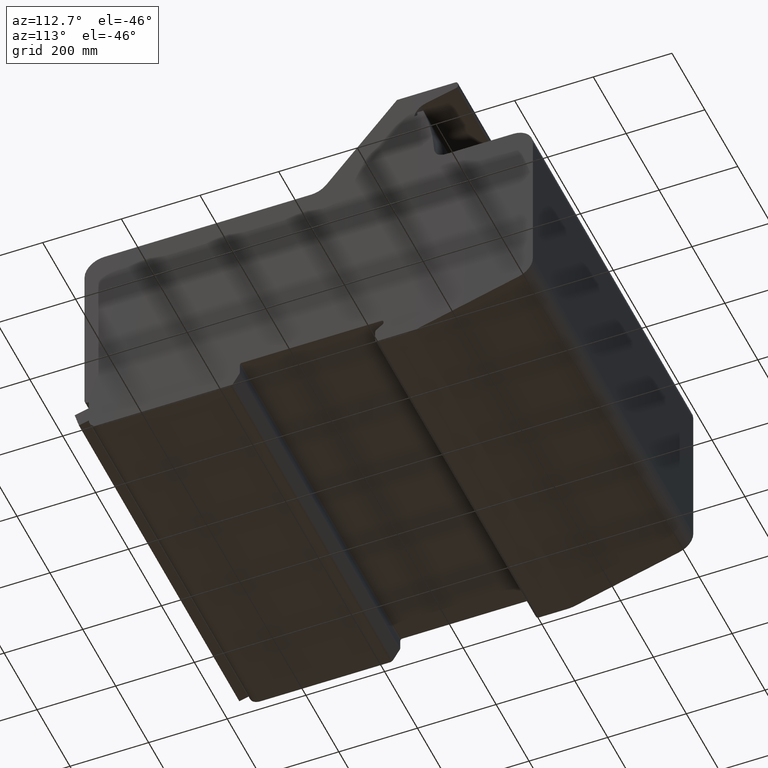
[diagram: clean part render]
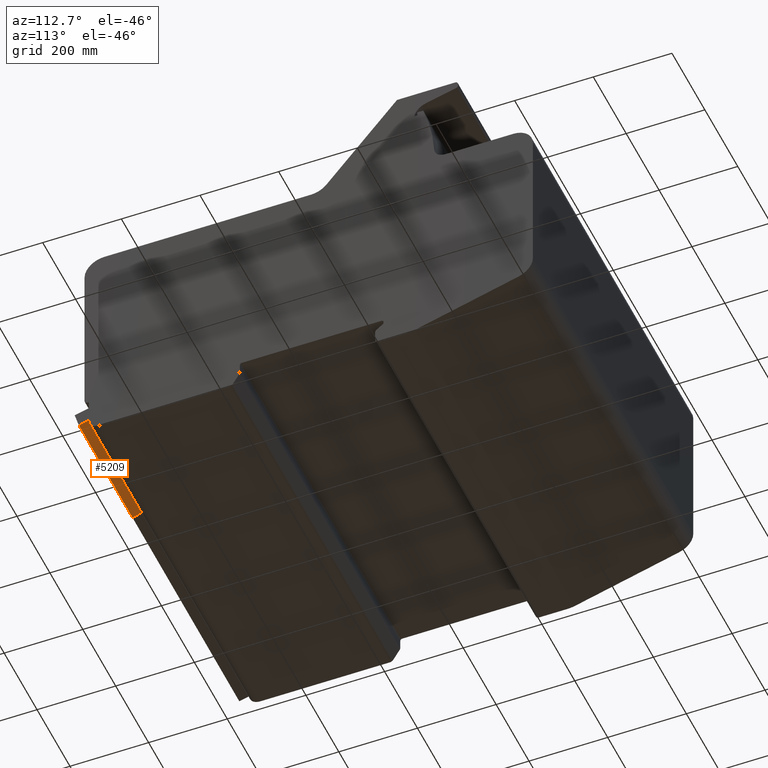
[diagram: same view with one face highlighted and labeled with its STEP entity id]
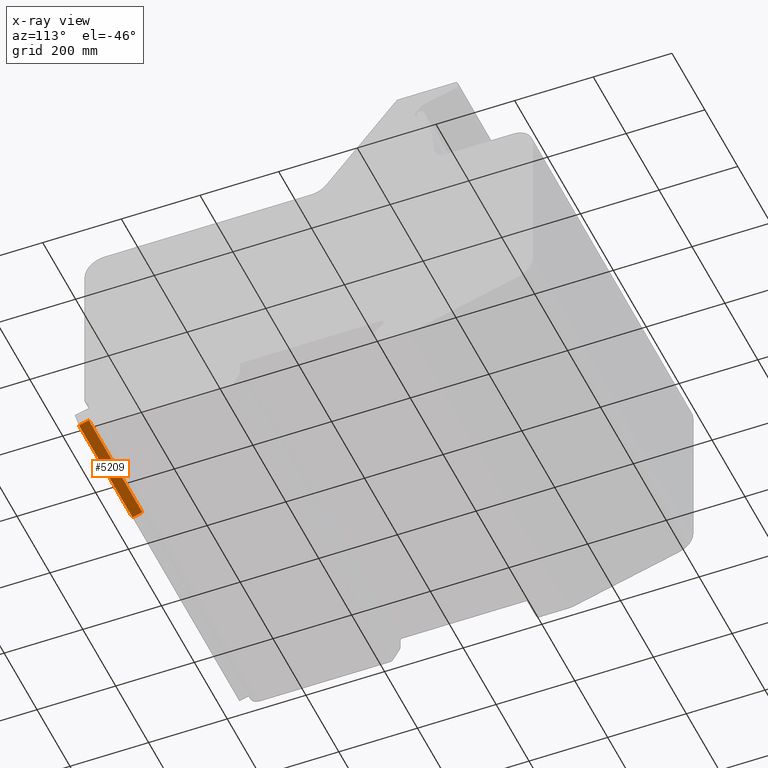
[diagram: x-ray of the same camera — body ghosted, the highlighted face saturated]
A machine part, auxiliary view. The second image highlights one B-rep face of the part: STEP entity #5209.
The next image is the same camera in x-ray: the body ghosted, the highlighted face saturated — about 0% of this face is hidden behind the body in this view.
In plain terms, the highlighted planar face has unit normal (0, 0.2676, -0.9635).
Its self-contained STEP definition (entity closure, byte-faithful):
#3782=CARTESIAN_POINT('',(975.00000000000045,-769.29424544863309,-46.040716385097973));
#3783=VERTEX_POINT('',#3782);
#3800=CARTESIAN_POINT('',(650.00000000000023,-769.29424544863309,-46.040716385097973));
#3801=VERTEX_POINT('',#3800);
#3808=CARTESIAN_POINT('',(650.00000000000023,-769.29424544863309,-46.040716385097973));
#3809=DIRECTION('',(1.0,0.0,0.0));
#3810=VECTOR('',#3809,325.00000000000011);
#3811=LINE('',#3808,#3810);
#3812=EDGE_CURVE('',#3801,#3783,#3811,.T.);
#5162=CARTESIAN_POINT('',(975.00000000000045,-743.99999999999977,-39.014537093899939));
#5163=VERTEX_POINT('',#5162);
#5170=CARTESIAN_POINT('',(650.00000000000023,-743.99999999999977,-39.014537093899939));
#5171=VERTEX_POINT('',#5170);
#5172=CARTESIAN_POINT('',(650.00000000000023,-743.99999999999977,-39.014537093899939));
#5173=DIRECTION('',(1.0,0.0,0.0));
#5174=VECTOR('',#5173,325.00000000000011);
#5175=LINE('',#5172,#5174);
#5176=EDGE_CURVE('',#5171,#5163,#5175,.T.);
#5188=CARTESIAN_POINT('',(650.00000000000023,-743.99999999999977,-39.014537093899939));
#5189=DIRECTION('',(0.0,0.267643863782947,-0.963517909630815));
#5190=DIRECTION('',(-1.0,0.0,0.0));
#5191=AXIS2_PLACEMENT_3D('',#5188,#5189,#5190);
#5192=PLANE('',#5191);
#5193=CARTESIAN_POINT('',(975.00000000000045,-743.99999999999977,-39.014537093899939));
#5194=DIRECTION('',(0.0,-0.963517909630815,-0.267643863782947));
#5195=VECTOR('',#5194,26.251972273483901);
#5196=LINE('',#5193,#5195);
#5197=EDGE_CURVE('',#5163,#3783,#5196,.T.);
#5198=ORIENTED_EDGE('',*,*,#5197,.T.);
#5199=ORIENTED_EDGE('',*,*,#3812,.F.);
#5200=CARTESIAN_POINT('',(650.00000000000023,-743.99999999999977,-39.014537093899939));
#5201=DIRECTION('',(0.0,-0.963517909630815,-0.267643863782947));
#5202=VECTOR('',#5201,26.251972273483901);
#5203=LINE('',#5200,#5202);
#5204=EDGE_CURVE('',#5171,#3801,#5203,.T.);
#5205=ORIENTED_EDGE('',*,*,#5204,.F.);
#5206=ORIENTED_EDGE('',*,*,#5176,.T.);
#5207=EDGE_LOOP('',(#5198,#5199,#5205,#5206));
#5208=FACE_OUTER_BOUND('',#5207,.T.);
#5209=ADVANCED_FACE('',(#5208),#5192,.T.);